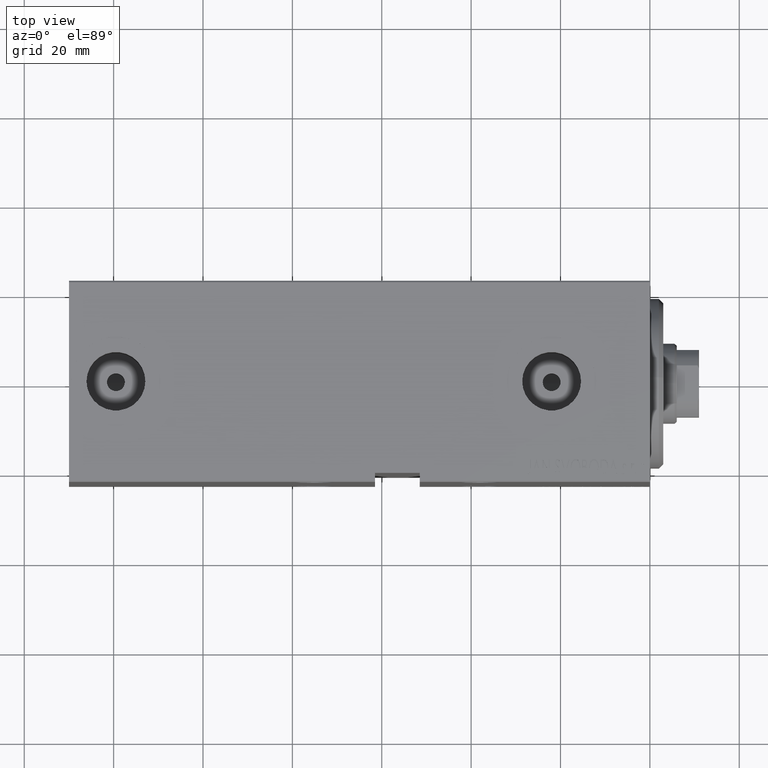
[diagram: clean part render]
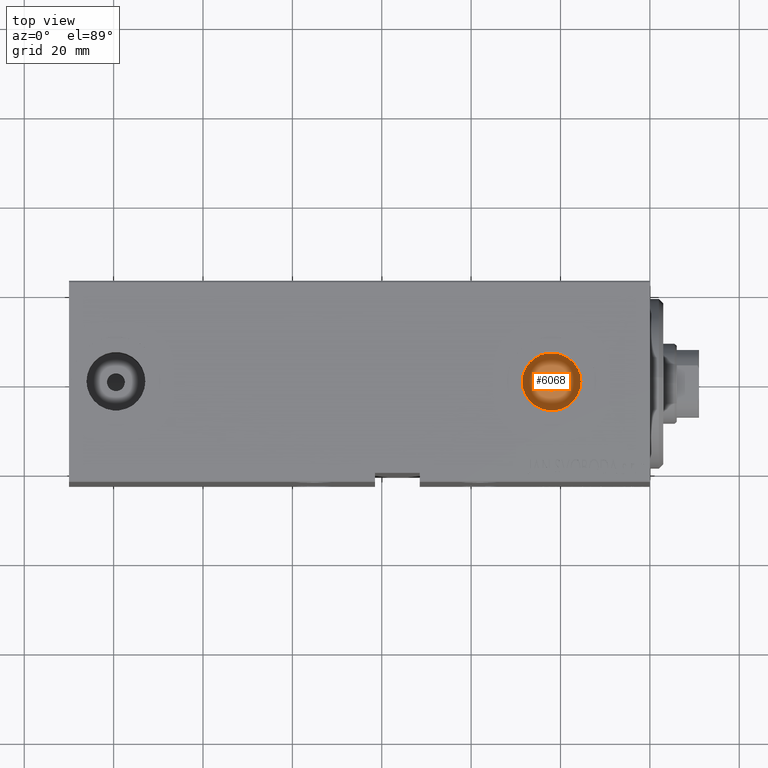
[diagram: same view with one face highlighted and labeled with its STEP entity id]
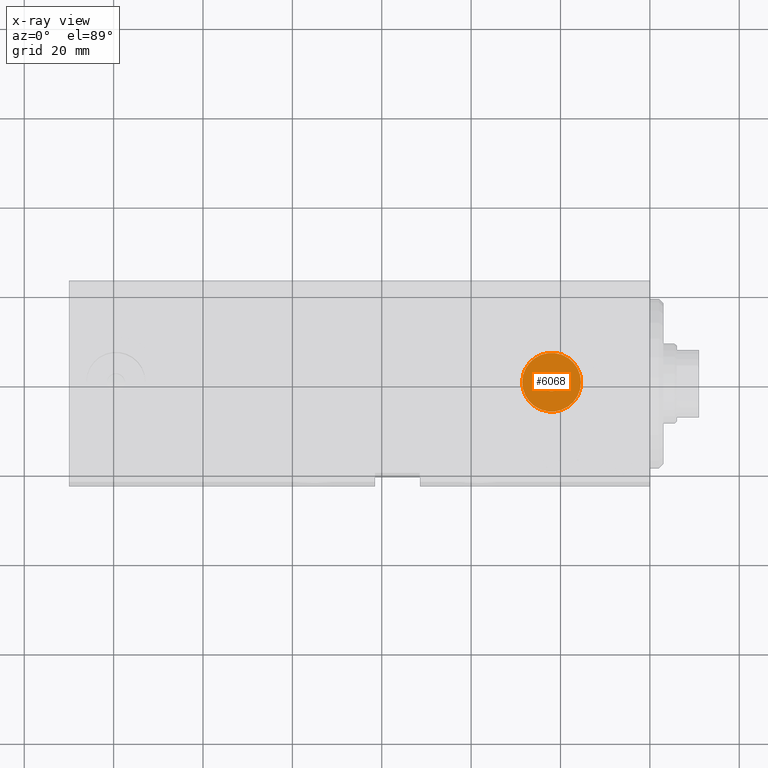
[diagram: x-ray of the same camera — body ghosted, the highlighted face saturated]
A machine part, top view. The second image highlights one B-rep face of the part: STEP entity #6068.
The next image is the same camera in x-ray: the body ghosted, the highlighted face saturated — about 0% of this face is hidden behind the body in this view.
In plain terms, the highlighted planar face has unit normal (0, -0, 1).
Its self-contained STEP definition (entity closure, byte-faithful):
#930 = EDGE_CURVE ( 'NONE', #5824, #12114, #36625, .T. ) ;
#3622 = CARTESIAN_POINT ( 'NONE',  ( 22.00000000000000000, -5.011423375044110611E-15, 19.23999999999999844 ) ) ;
#4579 = CARTESIAN_POINT ( 'NONE',  ( 15.41999999999999993, -4.205605781205152358E-15, 19.23999999999999844 ) ) ;
#5824 = VERTEX_POINT ( 'NONE', #21236 ) ;
#5922 = EDGE_CURVE ( 'NONE', #8314, #22572, #41040, .T. ) ;
#6068 = ADVANCED_FACE ( 'NONE', ( #20959, #38300 ), #17581, .T. ) ;
#6430 = CARTESIAN_POINT ( 'NONE',  ( 22.00000000000000000, -5.011423375044110611E-15, 19.23999999999999844 ) ) ;
#8314 = VERTEX_POINT ( 'NONE', #4579 ) ;
#8555 = DIRECTION ( 'NONE',  ( 0.000000000000000000, 0.000000000000000000, 1.000000000000000000 ) ) ;
#11762 = DIRECTION ( 'NONE',  ( 1.000000000000000000, 0.000000000000000000, 0.000000000000000000 ) ) ;
#12114 = VERTEX_POINT ( 'NONE', #39233 ) ;
#12811 = EDGE_LOOP ( 'NONE', ( #36193, #31192 ) ) ;
#12958 = DIRECTION ( 'NONE',  ( 0.000000000000000000, 0.000000000000000000, 1.000000000000000000 ) ) ;
#13620 = DIRECTION ( 'NONE',  ( 1.000000000000000000, 0.000000000000000000, 0.000000000000000000 ) ) ;
#14851 = DIRECTION ( 'NONE',  ( 0.000000000000000000, 0.000000000000000000, 1.000000000000000000 ) ) ;
#15163 = AXIS2_PLACEMENT_3D ( 'NONE', #6430, #12958, #13620 ) ;
#16625 = EDGE_LOOP ( 'NONE', ( #20442, #34870 ) ) ;
#17581 = PLANE ( 'NONE',  #41779 ) ;
#18076 = CARTESIAN_POINT ( 'NONE',  ( 22.00000000000000000, -5.011423375044110611E-15, 19.23999999999999844 ) ) ;
#18630 = AXIS2_PLACEMENT_3D ( 'NONE', #19141, #8555, #39856 ) ;
#19141 = CARTESIAN_POINT ( 'NONE',  ( 22.00000000000000000, -5.011423375044110611E-15, 19.23999999999999844 ) ) ;
#20442 = ORIENTED_EDGE ( 'NONE', *, *, #32716, .F. ) ;
#20959 = FACE_BOUND ( 'NONE', #16625, .T. ) ;
#21236 = CARTESIAN_POINT ( 'NONE',  ( 19.99999999999999645, -4.766494015214640315E-15, 19.23999999999999844 ) ) ;
#21673 = DIRECTION ( 'NONE',  ( 0.000000000000000000, 0.000000000000000000, 1.000000000000000000 ) ) ;
#22572 = VERTEX_POINT ( 'NONE', #27116 ) ;
#24113 = DIRECTION ( 'NONE',  ( 1.000000000000000000, 0.000000000000000000, -0.000000000000000000 ) ) ;
#27116 = CARTESIAN_POINT ( 'NONE',  ( 28.57999999999999829, -5.011423375044110611E-15, 19.23999999999999844 ) ) ;
#28967 = AXIS2_PLACEMENT_3D ( 'NONE', #31974, #14851, #43229 ) ;
#31108 = CIRCLE ( 'NONE', #28967, 6.579999999999999183 ) ;
#31192 = ORIENTED_EDGE ( 'NONE', *, *, #5922, .T. ) ;
#31974 = CARTESIAN_POINT ( 'NONE',  ( 22.00000000000000000, -5.011423375044110611E-15, 19.23999999999999844 ) ) ;
#32716 = EDGE_CURVE ( 'NONE', #12114, #5824, #34588, .T. ) ;
#34247 = DIRECTION ( 'NONE',  ( 0.000000000000000000, 0.000000000000000000, 1.000000000000000000 ) ) ;
#34588 = CIRCLE ( 'NONE', #15163, 2.000000000000001776 ) ;
#34870 = ORIENTED_EDGE ( 'NONE', *, *, #930, .F. ) ;
#36193 = ORIENTED_EDGE ( 'NONE', *, *, #37188, .T. ) ;
#36625 = CIRCLE ( 'NONE', #18630, 2.000000000000001776 ) ;
#37188 = EDGE_CURVE ( 'NONE', #22572, #8314, #31108, .T. ) ;
#38300 = FACE_OUTER_BOUND ( 'NONE', #12811, .T. ) ;
#39233 = CARTESIAN_POINT ( 'NONE',  ( 24.00000000000000000, -5.011423375044110611E-15, 19.23999999999999844 ) ) ;
#39856 = DIRECTION ( 'NONE',  ( 1.000000000000000000, 0.000000000000000000, 0.000000000000000000 ) ) ;
#41040 = CIRCLE ( 'NONE', #43937, 6.579999999999999183 ) ;
#41779 = AXIS2_PLACEMENT_3D ( 'NONE', #3622, #34247, #24113 ) ;
#43229 = DIRECTION ( 'NONE',  ( 1.000000000000000000, 0.000000000000000000, 0.000000000000000000 ) ) ;
#43937 = AXIS2_PLACEMENT_3D ( 'NONE', #18076, #21673, #11762 ) ;